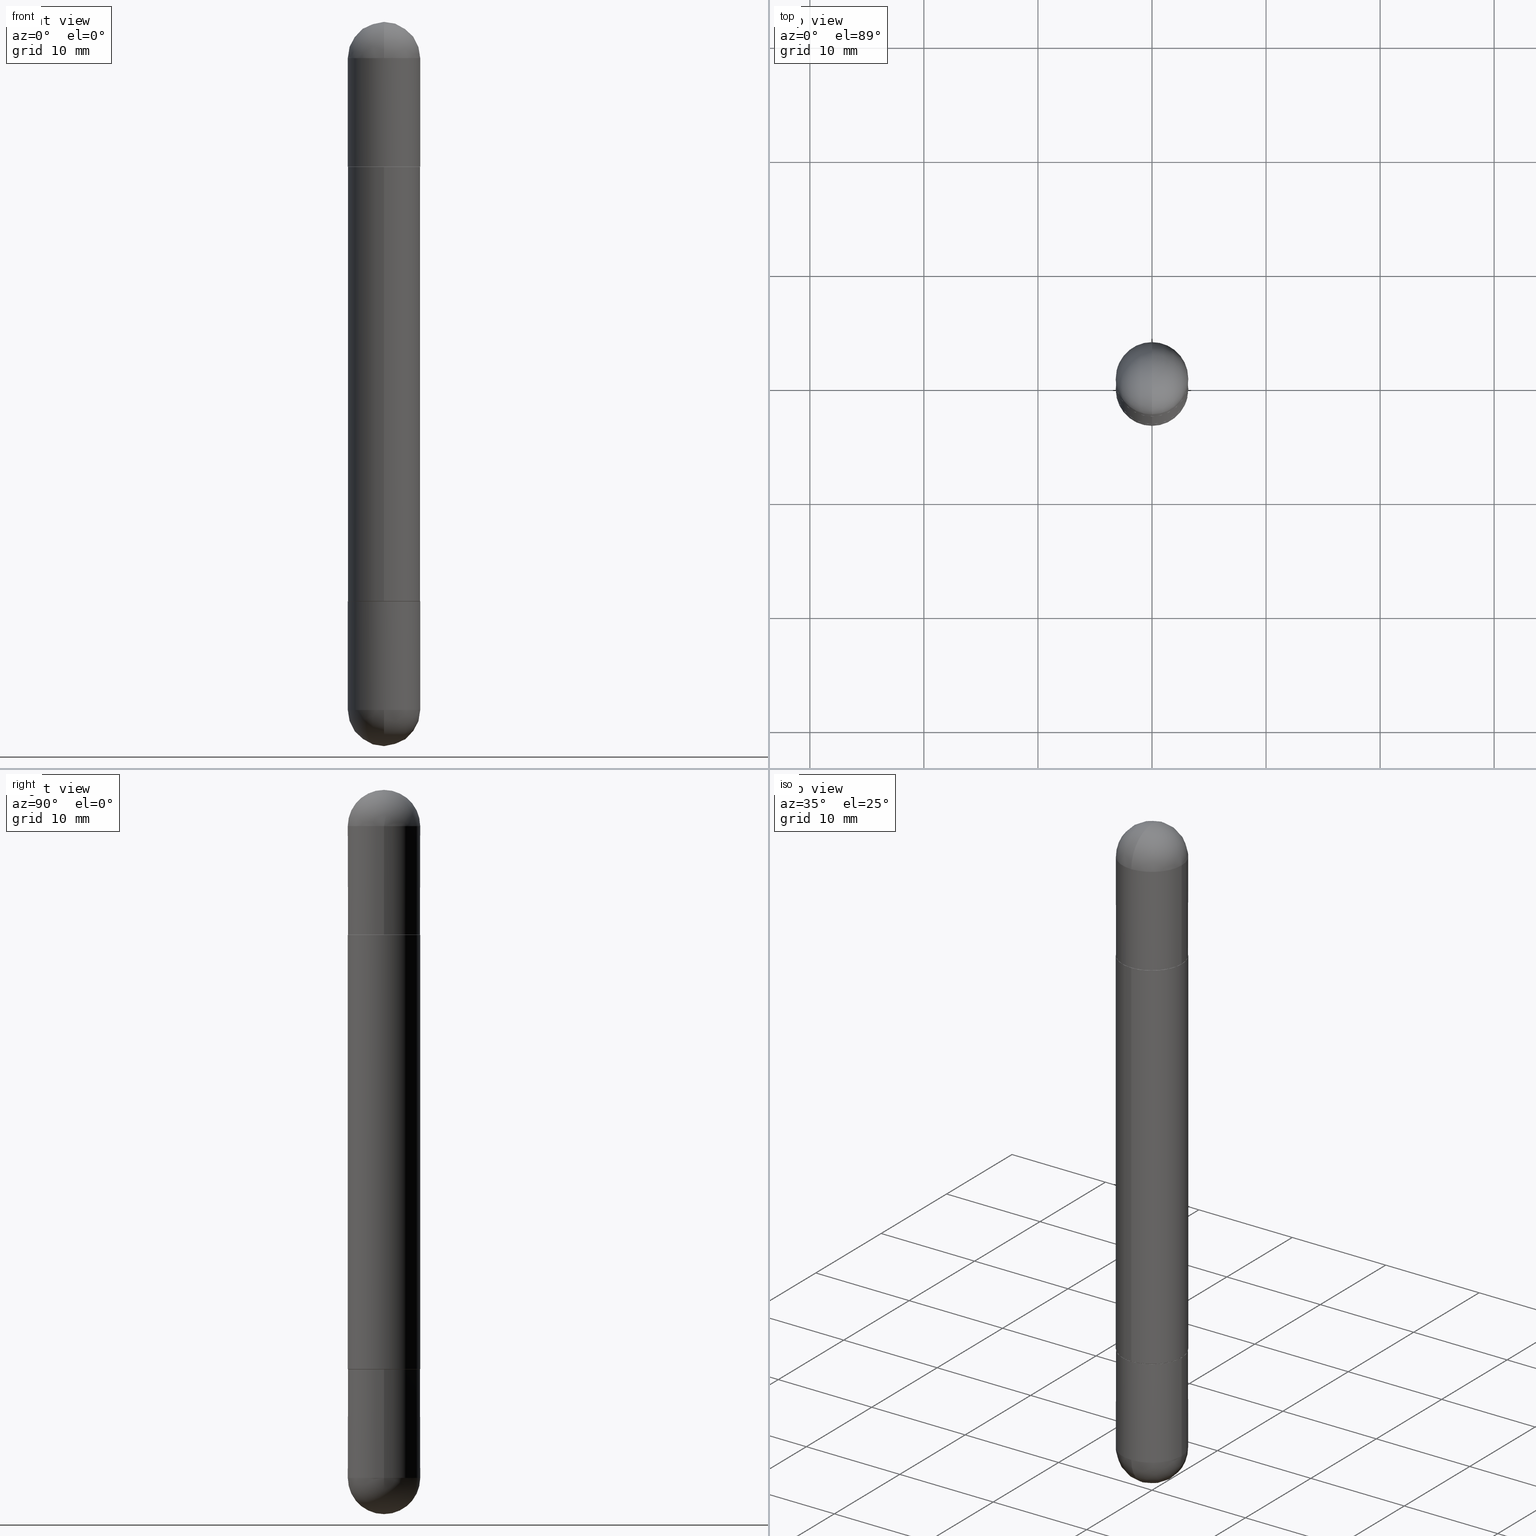
[diagram: canonical four-view strip — front | top / right | iso, engineering-drawing reading convention]
A machine part, canonical four-view strip (front | top / right | iso — engineering-drawing reading convention). The complete STEP part file that produces these views, byte-faithful:
ISO-10303-21;
HEADER;
FILE_DESCRIPTION (( 'STEP AP203' ),
    '1' );
FILE_NAME ('31470.STEP',
    '2024-03-01T12:42:02',
    ( '' ),
    ( '' ),
    'SwSTEP 2.0',
    'SolidWorks 2023',
    '' );
FILE_SCHEMA (( 'CONFIG_CONTROL_DESIGN' ));
ENDSEC;

DATA;
#1 = CYLINDRICAL_SURFACE ( 'NONE', #696, 0.1250000000000001388 ) ;
#2 =( CONVERSION_BASED_UNIT ( 'INCH', #409 ) LENGTH_UNIT ( ) NAMED_UNIT ( #298 ) );
#3 = CARTESIAN_POINT ( 'NONE',  ( 5.807988414689700538E-29, -8.292268179752471696E-15, -0.1250000000000004441 ) ) ;
#4 = DIRECTION ( 'NONE',  ( -2.444981061416011497E-29, 3.492179817113241133E-15, -1.000000000000000000 ) ) ;
#5 = EDGE_LOOP ( 'NONE', ( #20, #592, #673, #334, #473 ) ) ;
#6 = AXIS2_PLACEMENT_3D ( 'NONE', #447, #86, #73 ) ;
#7 = AXIS2_PLACEMENT_3D ( 'NONE', #325, #4, #514 ) ;
#8 = CLOSED_SHELL ( 'NONE', ( #542, #321, #764, #647, #517, #436 ) ) ;
#9 = LINE ( 'NONE', #396, #603 ) ;
#10 = CARTESIAN_POINT ( 'NONE',  ( 5.807988414689700538E-29, -8.292268179752471696E-15, -2.375000000000000000 ) ) ;
#11 = ORIENTED_EDGE ( 'NONE', *, *, #99, .F. ) ;
#12 = EDGE_CURVE ( 'NONE', #398, #81, #238, .T. ) ;
#13 = DIRECTION ( 'NONE',  ( -6.982962677686265922E-15, -1.000000000000000000, -4.370956789862816416E-15 ) ) ;
#14 = DIRECTION ( 'NONE',  ( 2.444981061416011497E-29, -3.492179817113241133E-15, 1.000000000000000000 ) ) ;
#15 = VERTEX_POINT ( 'NONE', #438 ) ;
#16 = CC_DESIGN_PERSON_AND_ORGANIZATION_ASSIGNMENT ( #617, #128, ( #330 ) ) ;
#17 = CARTESIAN_POINT ( 'NONE',  ( 0.1250000000000000000, -8.510485763430165164E-15, -2.375000000000000000 ) ) ;
#18 = ADVANCED_FACE ( 'NONE', ( #243 ), #495, .T. ) ;
#19 = DIRECTION ( 'NONE',  ( -1.000000000000000000, 0.000000000000000000, 0.000000000000000000 ) ) ;
#20 = ORIENTED_EDGE ( 'NONE', *, *, #85, .F. ) ;
#21 = VECTOR ( 'NONE', #397, 39.37007874015748143 ) ;
#22 = AXIS2_PLACEMENT_3D ( 'NONE', #731, #292, #788 ) ;
#23 = CARTESIAN_POINT ( 'NONE',  ( 5.807988414689700538E-29, -8.292268179752471696E-15, -0.1250000000000004441 ) ) ;
#24 = AXIS2_PLACEMENT_3D ( 'NONE', #59, #565, #376 ) ;
#25 = EDGE_CURVE ( 'NONE', #196, #212, #405, .T. ) ;
#26 = CARTESIAN_POINT ( 'NONE',  ( 4.887517141770606261E-29, -6.980867454409367060E-15, -0.5010000000000010001 ) ) ;
#27 = ORIENTED_EDGE ( 'NONE', *, *, #465, .T. ) ;
#28 = LINE ( 'NONE', #281, #191 ) ;
#29 = DIRECTION ( 'NONE',  ( 1.000000000000000000, -6.982962677686265922E-15, -4.883557194083112901E-29 ) ) ;
#30 = ORIENTED_EDGE ( 'NONE', *, *, #313, .F. ) ;
#31 = DIRECTION ( 'NONE',  ( 6.982962677686265922E-15, 1.000000000000000000, -4.370956789862814839E-15 ) ) ;
#32 = DIRECTION ( 'NONE',  ( -6.982962677686265922E-15, -1.000000000000000000, -3.304654831045479808E-15 ) ) ;
#33 = VERTEX_POINT ( 'NONE', #181 ) ;
#34 = FACE_OUTER_BOUND ( 'NONE', #112, .T. ) ;
#35 = CONICAL_SURFACE ( 'NONE', #342, 0.1239999999999999991, 0.7853981633975507526 ) ;
#36 = FACE_OUTER_BOUND ( 'NONE', #404, .T. ) ;
#37 = LOCAL_TIME ( 7, 42, 2.000000000000000000, #574 ) ;
#38 = AXIS2_PLACEMENT_3D ( 'NONE', #123, #55, #245 ) ;
#39 = AXIS2_PLACEMENT_3D ( 'NONE', #87, #608, #729 ) ;
#40 = ORIENTED_EDGE ( 'NONE', *, *, #572, .T. ) ;
#41 = EDGE_CURVE ( 'NONE', #190, #569, #513, .T. ) ;
#42 = DIRECTION ( 'NONE',  ( -1.000000000000000000, 6.982962677686265922E-15, -4.883557194083112901E-29 ) ) ;
#43 = FACE_OUTER_BOUND ( 'NONE', #796, .T. ) ;
#44 = EDGE_LOOP ( 'NONE', ( #620, #373, #735, #159 ) ) ;
#45 = FACE_OUTER_BOUND ( 'NONE', #740, .T. ) ;
#46 = EDGE_CURVE ( 'NONE', #81, #398, #578, .T. ) ;
#47 = ORIENTED_EDGE ( 'NONE', *, *, #500, .F. ) ;
#48 = PRODUCT_DEFINITION_SHAPE ( 'NONE', 'NONE',  #770 ) ;
#49 = DIRECTION ( 'NONE',  ( -1.000000000000000000, 6.982962677686265922E-15, 4.883557194083112340E-29 ) ) ;
#50 = AXIS2_PLACEMENT_3D ( 'NONE', #305, #558, #237 ) ;
#51 = ADVANCED_FACE ( 'NONE', ( #501 ), #693, .T. ) ;
#52 = SECURITY_CLASSIFICATION ( '', '', #319 ) ;
#53 = ORIENTED_EDGE ( 'NONE', *, *, #124, .T. ) ;
#54 = DIRECTION ( 'NONE',  ( 2.445468806185136597E-29, -3.491481338843145583E-15, 1.000000000000000000 ) ) ;
#55 = DIRECTION ( 'NONE',  ( -1.000000000000000000, 6.982962677686265922E-15, -4.883557194083112901E-29 ) ) ;
#56 = DIRECTION ( 'NONE',  ( -6.982962677686265133E-15, -1.000000000000000000, 0.000000000000000000 ) ) ;
#57 = DIRECTION ( 'NONE',  ( 2.444981061416011497E-29, -3.492179817113241133E-15, 1.000000000000000000 ) ) ;
#58 = ADVANCED_FACE ( 'NONE', ( #317 ), #629, .T. ) ;
#59 = CARTESIAN_POINT ( 'NONE',  ( 0.000000000000000000, 0.000000000000000000, -2.500000000000000444 ) ) ;
#60 = DIRECTION ( 'NONE',  ( 6.982962677686265922E-15, 1.000000000000000000, 3.551402391763536859E-15 ) ) ;
#61 = AXIS2_PLACEMENT_3D ( 'NONE', #146, #778, #400 ) ;
#62 = AXIS2_PLACEMENT_3D ( 'NONE', #576, #145, #189 ) ;
#63 = PERSON_AND_ORGANIZATION_ROLE ( 'design_supplier' ) ;
#64 = AXIS2_PLACEMENT_3D ( 'NONE', #622, #57, #561 ) ;
#65 = CIRCLE ( 'NONE', #276, 0.1250000000000000000 ) ;
#66 = CC_DESIGN_PERSON_AND_ORGANIZATION_ASSIGNMENT ( #175, #610, ( #750 ) ) ;
#67 = DIRECTION ( 'NONE',  ( 2.445468806185136597E-29, -3.491481338843145583E-15, 1.000000000000000000 ) ) ;
#68 = DIRECTION ( 'NONE',  ( -6.982962677686265922E-15, -1.000000000000000000, -3.304654831045479808E-15 ) ) ;
#69 = COORDINATED_UNIVERSAL_TIME_OFFSET ( 5, 0, .BEHIND. ) ;
#70 = CARTESIAN_POINT ( 'NONE',  ( 0.000000000000000000, 0.000000000000000000, -2.500000000000000444 ) ) ;
#71 = CARTESIAN_POINT ( 'NONE',  ( 0.000000000000000000, 0.000000000000000000, 0.000000000000000000 ) ) ;
#72 = APPROVAL_ROLE ( '' ) ;
#73 = DIRECTION ( 'NONE',  ( 1.000000000000000000, -6.982962677686270655E-15, 0.000000000000000000 ) ) ;
#74 = DIRECTION ( 'NONE',  ( 6.982962677686265922E-15, 1.000000000000000000, 3.551402391763536859E-15 ) ) ;
#75 = ADVANCED_FACE ( 'NONE', ( #200 ), #782, .T. ) ;
#76 = ORIENTED_EDGE ( 'NONE', *, *, #492, .T. ) ;
#77 = VECTOR ( 'NONE', #607, 39.37007874015748143 ) ;
#78 = AXIS2_PLACEMENT_3D ( 'NONE', #161, #786, #103 ) ;
#79 = DIRECTION ( 'NONE',  ( -2.444981061416010936E-29, 3.492179817113241133E-15, -1.000000000000000000 ) ) ;
#80 = DIRECTION ( 'NONE',  ( 1.000000000000000000, -6.860497997771530774E-15, -4.840798879624142912E-29 ) ) ;
#81 = VERTEX_POINT ( 'NONE', #275 ) ;
#82 = FACE_OUTER_BOUND ( 'NONE', #584, .T. ) ;
#83 = CARTESIAN_POINT ( 'NONE',  ( -8.728703347107364016E-16, -0.1250000000000072720, -0.5010000000000014442 ) ) ;
#84 = ORIENTED_EDGE ( 'NONE', *, *, #12, .F. ) ;
#85 = EDGE_CURVE ( 'NONE', #365, #515, #117, .T. ) ;
#86 = DIRECTION ( 'NONE',  ( 2.445468806185136597E-29, -3.491481338843145583E-15, 1.000000000000000000 ) ) ;
#87 = CARTESIAN_POINT ( 'NONE',  ( 4.887517141770606261E-29, -6.980867454409367060E-15, -0.5010000000000010001 ) ) ;
#88 = VERTEX_POINT ( 'NONE', #522 ) ;
#89 = APPROVAL_PERSON_ORGANIZATION ( #738, #674, #363 ) ;
#90 = DIRECTION ( 'NONE',  ( -2.445468806185136877E-29, 3.491481338843145188E-15, -1.000000000000000000 ) ) ;
#91 = PLANE ( 'NONE',  #104 ) ;
#92 = ORIENTED_EDGE ( 'NONE', *, *, #99, .T. ) ;
#93 = DIRECTION ( 'NONE',  ( -6.982962677686265922E-15, -1.000000000000000000, 4.406206441393973340E-15 ) ) ;
#94 = DIRECTION ( 'NONE',  ( -6.982962677686265922E-15, -1.000000000000000000, -3.492179817113241133E-15 ) ) ;
#95 = ORIENTED_EDGE ( 'NONE', *, *, #210, .F. ) ;
#96 = DIRECTION ( 'NONE',  ( -6.982962677686265922E-15, -1.000000000000000000, -3.304654831045479808E-15 ) ) ;
#97 = CARTESIAN_POINT ( 'NONE',  ( 0.1250000000000000000, -8.728703347107833388E-16, 6.095220969744919741E-30 ) ) ;
#98 = EDGE_LOOP ( 'NONE', ( #793, #322, #299, #433, #587 ) ) ;
#99 = EDGE_CURVE ( 'NONE', #152, #811, #332, .T. ) ;
#100 = VECTOR ( 'NONE', #662, 39.37007874015748143 ) ;
#101 = DIRECTION ( 'NONE',  ( 2.438088387897960049E-29, -3.491481338843145188E-15, -1.000000000000000000 ) ) ;
#102 = CIRCLE ( 'NONE', #50, 0.1250000000000000000 ) ;
#103 = DIRECTION ( 'NONE',  ( 1.000000000000000000, -6.982962677686266711E-15, 0.000000000000000000 ) ) ;
#104 = AXIS2_PLACEMENT_3D ( 'NONE', #285, #536, #94 ) ;
#105 = VERTEX_POINT ( 'NONE', #771 ) ;
#106 = CALENDAR_DATE ( 2024, 1, 3 ) ;
#107 = DIRECTION ( 'NONE',  ( -2.444981061416011497E-29, 3.492179817113241133E-15, 1.000000000000000000 ) ) ;
#108 = ORIENTED_EDGE ( 'NONE', *, *, #479, .F. ) ;
#109 = PERSON_AND_ORGANIZATION ( #468, #279 ) ;
#110 = EDGE_CURVE ( 'NONE', #152, #477, #267, .T. ) ;
#111 = DIRECTION ( 'NONE',  ( 1.000000000000000000, -6.982962677686266711E-15, 4.876176775795935793E-29 ) ) ;
#112 = EDGE_LOOP ( 'NONE', ( #730, #219, #599, #343 ) ) ;
#113 = APPROVAL_ROLE ( '' ) ;
#114 = LINE ( 'NONE', #173, #119 ) ;
#115 = AXIS2_PLACEMENT_3D ( 'NONE', #370, #614, #315 ) ;
#116 = LOCAL_TIME ( 7, 42, 2.000000000000000000, #678 ) ;
#117 = CIRCLE ( 'NONE', #222, 0.1250000000000000000 ) ;
#118 = CARTESIAN_POINT ( 'NONE',  ( 4.889962122832022433E-29, -6.984359634226481478E-15, -0.5000000000000009992 ) ) ;
#119 = VECTOR ( 'NONE', #367, 39.37007874015748143 ) ;
#120 = CARTESIAN_POINT ( 'NONE',  ( 8.728703347108321496E-16, 0.1249999999999930195, -0.5000000000000001110 ) ) ;
#121 = EDGE_LOOP ( 'NONE', ( #546, #303, #680, #520, #422 ) ) ;
#122 = CARTESIAN_POINT ( 'NONE',  ( 8.541320007226054361E-16, 0.1239999999999930186, -0.5000000000000005551 ) ) ;
#123 = CARTESIAN_POINT ( 'NONE',  ( 5.476868636775814291E-29, -8.766450547892521992E-15, -2.375000000000000000 ) ) ;
#124 = EDGE_CURVE ( 'NONE', #726, #272, #733, .T. ) ;
#125 = CARTESIAN_POINT ( 'NONE',  ( 4.890937612370273194E-29, -6.982962677686291165E-15, -0.5000000000000006661 ) ) ;
#126 = DIRECTION ( 'NONE',  ( -2.445468806185136597E-29, 3.491481338843145583E-15, 1.000000000000000000 ) ) ;
#127 = CIRCLE ( 'NONE', #262, 0.1250000000000000000 ) ;
#128 = PERSON_AND_ORGANIZATION_ROLE ( 'creator' ) ;
#129 = CIRCLE ( 'NONE', #169, 0.1250000000000000000 ) ;
#130 = DIRECTION ( 'NONE',  ( -2.444981061416011497E-29, 3.492179817113241133E-15, -1.000000000000000000 ) ) ;
#131 = DIRECTION ( 'NONE',  ( -2.445468806185136597E-29, 3.491481338843145583E-15, 1.000000000000000000 ) ) ;
#132 = DATE_AND_TIME ( #758, #640 ) ;
#133 = DIRECTION ( 'NONE',  ( 1.000000000000000000, -6.982962677686270655E-15, 0.000000000000000000 ) ) ;
#134 = EDGE_CURVE ( 'NONE', #88, #534, #203, .T. ) ;
#135 = CARTESIAN_POINT ( 'NONE',  ( -0.1250000000000000000, 8.881784197001252323E-16, -6.148668862818632227E-30 ) ) ;
#136 = ORIENTED_EDGE ( 'NONE', *, *, #301, .T. ) ;
#137 = DIRECTION ( 'NONE',  ( -2.444981061416011497E-29, 3.492179817113241133E-15, -1.000000000000000000 ) ) ;
#138 = DIRECTION ( 'NONE',  ( -6.982962677686265922E-15, -1.000000000000000000, -3.278217592397108762E-15 ) ) ;
#139 = ORIENTED_EDGE ( 'NONE', *, *, #347, .F. ) ;
#140 = VECTOR ( 'NONE', #518, 39.37007874015748143 ) ;
#141 = CC_DESIGN_SECURITY_CLASSIFICATION ( #52, ( #330 ) ) ;
#142 = DIRECTION ( 'NONE',  ( -6.982962677686265922E-15, -1.000000000000000000, -3.304654831045479808E-15 ) ) ;
#143 = LINE ( 'NONE', #583, #21 ) ;
#144 = ORIENTED_EDGE ( 'NONE', *, *, #85, .T. ) ;
#145 = DIRECTION ( 'NONE',  ( 1.000000000000000000, -6.982962677686265922E-15, 4.883557194083112340E-29 ) ) ;
#146 = CARTESIAN_POINT ( 'NONE',  ( 4.890937612370273194E-29, -6.982962677686291165E-15, -0.5000000000000006661 ) ) ;
#147 = ORIENTED_EDGE ( 'NONE', *, *, #221, .T. ) ;
#148 = EDGE_CURVE ( 'NONE', #105, #485, #463, .T. ) ;
#149 = CARTESIAN_POINT ( 'NONE',  ( 8.810729923425729363E-16, 0.1239999999999930186, -2.000000000000000444 ) ) ;
#150 = FACE_OUTER_BOUND ( 'NONE', #449, .T. ) ;
#151 = APPLICATION_CONTEXT ( 'configuration controlled 3d designs of mechanical parts and assemblies' ) ;
#152 = VERTEX_POINT ( 'NONE', #385 ) ;
#153 = CIRCLE ( 'NONE', #236, 0.1250000000000000000 ) ;
#154 = FACE_OUTER_BOUND ( 'NONE', #668, .T. ) ;
#155 = CARTESIAN_POINT ( 'NONE',  ( 4.889962122832022433E-29, -6.984359634226481478E-15, -1.999999999999999778 ) ) ;
#156 = VERTEX_POINT ( 'NONE', #448 ) ;
#157 = ADVANCED_FACE ( 'NONE', ( #586 ), #209, .T. ) ;
#158 = CARTESIAN_POINT ( 'NONE',  ( 4.887517141770606261E-29, -6.980867454409367060E-15, -1.998999999999999666 ) ) ;
#159 = ORIENTED_EDGE ( 'NONE', *, *, #41, .F. ) ;
#160 = DIRECTION ( 'NONE',  ( -2.444981061416011497E-29, 3.492179817113241133E-15, -1.000000000000000000 ) ) ;
#161 = CARTESIAN_POINT ( 'NONE',  ( 0.000000000000000000, 0.000000000000000000, -2.500000000000000444 ) ) ;
#162 = CC_DESIGN_DATE_AND_TIME_ASSIGNMENT ( #386, #634, ( #52 ) ) ;
#163 = EDGE_LOOP ( 'NONE', ( #772, #619, #136, #497 ) ) ;
#164 = EDGE_CURVE ( 'NONE', #212, #196, #420, .T. ) ;
#165 = CONICAL_SURFACE ( 'NONE', #499, 0.1239999999999999991, 0.7853981633975507526 ) ;
#166 = CARTESIAN_POINT ( 'NONE',  ( -8.728703347107444874E-16, -0.1250000000000044964, -1.250000000000000222 ) ) ;
#167 = AXIS2_PLACEMENT_3D ( 'NONE', #544, #781, #419 ) ;
#168 = DIRECTION ( 'NONE',  ( 6.982962677686265922E-15, 1.000000000000000000, 3.551402391763536859E-15 ) ) ;
#169 = AXIS2_PLACEMENT_3D ( 'NONE', #654, #355, #421 ) ;
#170 = VERTEX_POINT ( 'NONE', #341 ) ;
#171 = ADVANCED_FACE ( 'NONE', ( #388 ), #633, .T. ) ;
#172 = CALENDAR_DATE ( 2024, 1, 3 ) ;
#173 = CARTESIAN_POINT ( 'NONE',  ( -0.1250000000000000000, 8.575622497214414453E-16, -2.500000000000000444 ) ) ;
#174 = ORIENTED_EDGE ( 'NONE', *, *, #753, .F. ) ;
#175 = PERSON_AND_ORGANIZATION ( #468, #279 ) ;
#176 = DIRECTION ( 'NONE',  ( 1.000000000000000000, -6.982962677686270655E-15, 0.000000000000000000 ) ) ;
#177 = ORIENTED_EDGE ( 'NONE', *, *, #465, .F. ) ;
#178 = APPLICATION_CONTEXT ( 'configuration controlled 3d designs of mechanical parts and assemblies' ) ;
#179 = CYLINDRICAL_SURFACE ( 'NONE', #579, 0.1250000000000000000 ) ;
#180 = AXIS2_PLACEMENT_3D ( 'NONE', #547, #720, #227 ) ;
#181 = CARTESIAN_POINT ( 'NONE',  ( -0.1250000000000000000, -6.780053178997939591E-15, -0.5000000000000006661 ) ) ;
#182 = DIRECTION ( 'NONE',  ( 1.000000000000000000, -6.982962677686270655E-15, 0.000000000000000000 ) ) ;
#183 = EDGE_CURVE ( 'NONE', #212, #272, #143, .T. ) ;
#184 = CARTESIAN_POINT ( 'NONE',  ( 5.476868636775814291E-29, -8.766450547892521992E-15, -0.1250000000000004441 ) ) ;
#185 = FACE_OUTER_BOUND ( 'NONE', #742, .T. ) ;
#186 = DIRECTION ( 'NONE',  ( 2.444981061416011497E-29, -3.492179817113241133E-15, 1.000000000000000000 ) ) ;
#187 = CALENDAR_DATE ( 2024, 1, 3 ) ;
#188 = EDGE_CURVE ( 'NONE', #569, #660, #239, .T. ) ;
#189 = DIRECTION ( 'NONE',  ( 6.982962677686265133E-15, 1.000000000000000000, 0.000000000000000000 ) ) ;
#190 = VERTEX_POINT ( 'NONE', #391 ) ;
#191 = VECTOR ( 'NONE', #90, 39.37007874015748143 ) ;
#192 = PERSON_AND_ORGANIZATION_ROLE ( 'creator' ) ;
#193 = EDGE_CURVE ( 'NONE', #15, #515, #489, .T. ) ;
#194 = CARTESIAN_POINT ( 'NONE',  ( 8.846257060213744265E-16, 0.1239999999999930186, -2.000000000000000444 ) ) ;
#195 = DIRECTION ( 'NONE',  ( 1.000000000000000000, -6.982962677686266711E-15, 4.876176775795935793E-29 ) ) ;
#196 = VERTEX_POINT ( 'NONE', #83 ) ;
#197 = PERSON_AND_ORGANIZATION ( #468, #279 ) ;
#198 = CC_DESIGN_PERSON_AND_ORGANIZATION_ASSIGNMENT ( #369, #192, ( #770 ) ) ;
#199 = DIRECTION ( 'NONE',  ( -1.000000000000000000, 0.000000000000000000, 0.000000000000000000 ) ) ;
#200 = FACE_OUTER_BOUND ( 'NONE', #428, .T. ) ;
#201 = VERTEX_POINT ( 'NONE', #337 ) ;
#202 = CARTESIAN_POINT ( 'NONE',  ( 0.1250000000000000000, -7.855833012397075293E-15, -0.5000000000000006661 ) ) ;
#203 = LINE ( 'NONE', #135, #224 ) ;
#204 = ORIENTED_EDGE ( 'NONE', *, *, #46, .T. ) ;
#205 = CIRCLE ( 'NONE', #638, 0.1250000000000000000 ) ;
#206 =( GEOMETRIC_REPRESENTATION_CONTEXT ( 3 ) GLOBAL_UNCERTAINTY_ASSIGNED_CONTEXT ( ( #543 ) ) GLOBAL_UNIT_ASSIGNED_CONTEXT ( ( #2, #259, #555 ) ) REPRESENTATION_CONTEXT ( 'NONE', 'WORKASPACE' ) );
#207 = CLOSED_SHELL ( 'NONE', ( #632, #51, #287, #711, #362 ) ) ;
#208 = FACE_OUTER_BOUND ( 'NONE', #817, .T. ) ;
#209 = SPHERICAL_SURFACE ( 'NONE', #379, 0.1250000000000001943 ) ;
#210 = EDGE_CURVE ( 'NONE', #249, #485, #359, .T. ) ;
#211 = MANIFOLD_SOLID_BREP ( 'Body-Move/Copy2[1]', #655 ) ;
#212 = VERTEX_POINT ( 'NONE', #649 ) ;
#213 = DIRECTION ( 'NONE',  ( -2.444981061416011497E-29, 3.492179817113241133E-15, 1.000000000000000000 ) ) ;
#214 = FACE_OUTER_BOUND ( 'NONE', #691, .T. ) ;
#215 = EDGE_LOOP ( 'NONE', ( #523, #401, #752, #306 ) ) ;
#216 = MANIFOLD_SOLID_BREP ( 'Mirror4[4]', #207 ) ;
#217 = CARTESIAN_POINT ( 'NONE',  ( 5.476868636775814291E-29, -8.766450547892521992E-15, -2.375000000000000000 ) ) ;
#218 = DIRECTION ( 'NONE',  ( -2.444981061416011497E-29, 3.492179817113241133E-15, 1.000000000000000000 ) ) ;
#219 = ORIENTED_EDGE ( 'NONE', *, *, #426, .T. ) ;
#220 = CONICAL_SURFACE ( 'NONE', #392, 0.1239999999999999991, 0.7853981633975507526 ) ;
#221 = EDGE_CURVE ( 'NONE', #811, #152, #792, .T. ) ;
#222 = AXIS2_PLACEMENT_3D ( 'NONE', #761, #766, #699 ) ;
#223 = FACE_OUTER_BOUND ( 'NONE', #253, .T. ) ;
#224 = VECTOR ( 'NONE', #452, 39.37007874015748143 ) ;
#225 = DIRECTION ( 'NONE',  ( -2.445468806185136597E-29, 3.491481338843145583E-15, -1.000000000000000000 ) ) ;
#226 = ORIENTED_EDGE ( 'NONE', *, *, #611, .T. ) ;
#227 = DIRECTION ( 'NONE',  ( 6.860497997771529196E-15, 1.000000000000000000, 0.000000000000000000 ) ) ;
#228 = CC_DESIGN_DATE_AND_TIME_ASSIGNMENT ( #675, #550, ( #770 ) ) ;
#229 = DIRECTION ( 'NONE',  ( -2.444981061416011497E-29, 3.492179817113241133E-15, 1.000000000000000000 ) ) ;
#230 = ORIENTED_EDGE ( 'NONE', *, *, #492, .F. ) ;
#231 = CARTESIAN_POINT ( 'NONE',  ( 8.575622497214909463E-16, 0.1249999999999957673, -1.250000000000000222 ) ) ;
#232 = EDGE_CURVE ( 'NONE', #105, #411, #461, .T. ) ;
#233 = ORIENTED_EDGE ( 'NONE', *, *, #600, .T. ) ;
#234 = AXIS2_PLACEMENT_3D ( 'NONE', #384, #765, #199 ) ;
#235 = APPROVAL_STATUS ( 'not_yet_approved' ) ;
#236 = AXIS2_PLACEMENT_3D ( 'NONE', #755, #327, #133 ) ;
#237 = DIRECTION ( 'NONE',  ( 1.000000000000000000, -6.982962677686270655E-15, 0.000000000000000000 ) ) ;
#238 = CIRCLE ( 'NONE', #345, 0.1239999999999999991 ) ;
#239 = CIRCLE ( 'NONE', #737, 0.1250000000000000000 ) ;
#240 = ORIENTED_EDGE ( 'NONE', *, *, #193, .F. ) ;
#241 = APPLICATION_PROTOCOL_DEFINITION ( 'international standard', 'config_control_design', 1994, #178 ) ;
#242 = CARTESIAN_POINT ( 'NONE',  ( 5.807988414689700538E-29, -8.292268179752471696E-15, -2.375000000000000000 ) ) ;
#243 = FACE_OUTER_BOUND ( 'NONE', #44, .T. ) ;
#244 = DIRECTION ( 'NONE',  ( -2.444981061416011497E-29, 3.492179817113241133E-15, 1.000000000000000000 ) ) ;
#245 = DIRECTION ( 'NONE',  ( 6.982962677686265922E-15, 1.000000000000000000, -4.370956789862814839E-15 ) ) ;
#246 = ADVANCED_FACE ( 'NONE', ( #403 ), #722, .T. ) ;
#247 = DIRECTION ( 'NONE',  ( -1.000000000000000000, 6.982962677686265922E-15, 4.876176775795935793E-29 ) ) ;
#248 = CIRCLE ( 'NONE', #814, 0.1250000000000000000 ) ;
#249 = VERTEX_POINT ( 'NONE', #348 ) ;
#250 = AXIS2_PLACEMENT_3D ( 'NONE', #636, #580, #74 ) ;
#251 = CARTESIAN_POINT ( 'NONE',  ( 0.000000000000000000, 0.000000000000000000, 0.000000000000000000 ) ) ;
#252 = ADVANCED_FACE ( 'NONE', ( #43 ), #548, .T. ) ;
#253 = EDGE_LOOP ( 'NONE', ( #53, #226 ) ) ;
#254 = DIRECTION ( 'NONE',  ( 1.000000000000000000, 0.000000000000000000, 0.000000000000000000 ) ) ;
#255 = DIRECTION ( 'NONE',  ( -2.444981061416011497E-29, 3.492179817113241133E-15, -1.000000000000000000 ) ) ;
#256 = ORIENTED_EDGE ( 'NONE', *, *, #148, .T. ) ;
#257 = EDGE_CURVE ( 'NONE', #201, #566, #806, .T. ) ;
#258 = ORIENTED_EDGE ( 'NONE', *, *, #183, .F. ) ;
#259 =( NAMED_UNIT ( * ) PLANE_ANGLE_UNIT ( ) SI_UNIT ( $, .RADIAN. ) );
#260 = DIRECTION ( 'NONE',  ( 1.000000000000000000, -6.982962677686266711E-15, 0.000000000000000000 ) ) ;
#261 = DIRECTION ( 'NONE',  ( -6.982962677686265922E-15, -1.000000000000000000, -3.278217592397108762E-15 ) ) ;
#262 = AXIS2_PLACEMENT_3D ( 'NONE', #23, #665, #657 ) ;
#263 = ORIENTED_EDGE ( 'NONE', *, *, #451, .T. ) ;
#264 = APPROVAL_DATE_TIME ( #132, #335 ) ;
#265 = AXIS2_PLACEMENT_3D ( 'NONE', #71, #282, #195 ) ;
#266 = CYLINDRICAL_SURFACE ( 'NONE', #278, 0.1250000000000001388 ) ;
#267 = LINE ( 'NONE', #328, #562 ) ;
#268 = VERTEX_POINT ( 'NONE', #467 ) ;
#269 = EDGE_CURVE ( 'NONE', #477, #268, #431, .T. ) ;
#270 = CARTESIAN_POINT ( 'NONE',  ( 4.889962122832022433E-29, -6.984359634226481478E-15, -0.5000000000000009992 ) ) ;
#271 = DIRECTION ( 'NONE',  ( 2.444981061416011497E-29, -3.492179817113241133E-15, 1.000000000000000000 ) ) ;
#272 = VERTEX_POINT ( 'NONE', #231 ) ;
#273 = CARTESIAN_POINT ( 'NONE',  ( -8.728703347107842263E-16, -0.1250000000000001388, -2.500000000000001332 ) ) ;
#274 = EDGE_CURVE ( 'NONE', #170, #529, #732, .T. ) ;
#275 = CARTESIAN_POINT ( 'NONE',  ( -8.658873720330480207E-16, -0.1240000000000069796, -0.5000000000000013323 ) ) ;
#276 = AXIS2_PLACEMENT_3D ( 'NONE', #242, #490, #801 ) ;
#277 = VERTEX_POINT ( 'NONE', #294 ) ;
#278 = AXIS2_PLACEMENT_3D ( 'NONE', #648, #130, #387 ) ;
#279 = ORGANIZATION ( 'UNSPECIFIED', 'UNSPECIFIED', '' ) ;
#280 = AXIS2_PLACEMENT_3D ( 'NONE', #816, #67, #621 ) ;
#281 = CARTESIAN_POINT ( 'NONE',  ( -0.1250000000000000000, 8.575622497214414453E-16, -2.500000000000000444 ) ) ;
#282 = DIRECTION ( 'NONE',  ( -2.445468806185136597E-29, 3.491481338843145583E-15, 1.000000000000000000 ) ) ;
#283 = ORIENTED_EDGE ( 'NONE', *, *, #686, .F. ) ;
#284 =( LENGTH_UNIT ( ) NAMED_UNIT ( * ) SI_UNIT ( $, .METRE. ) );
#285 = CARTESIAN_POINT ( 'NONE',  ( 4.889962122832022994E-29, -6.984359634226482266E-15, -0.5000000000000006661 ) ) ;
#286 = ORIENTED_EDGE ( 'NONE', *, *, #221, .F. ) ;
#287 = ADVANCED_FACE ( 'NONE', ( #150 ), #666, .T. ) ;
#288 = FACE_OUTER_BOUND ( 'NONE', #453, .T. ) ;
#289 = DIRECTION ( 'NONE',  ( 1.000000000000000000, -6.982962677686270655E-15, 0.000000000000000000 ) ) ;
#290 = ORIENTED_EDGE ( 'NONE', *, *, #658, .T. ) ;
#291 = AXIS2_PLACEMENT_3D ( 'NONE', #442, #704, #142 ) ;
#292 = DIRECTION ( 'NONE',  ( 2.445468806185136597E-29, -3.491481338843145583E-15, 1.000000000000000000 ) ) ;
#293 = AXIS2_PLACEMENT_3D ( 'NONE', #360, #225, #297 ) ;
#294 = CARTESIAN_POINT ( 'NONE',  ( -8.658873720330480207E-16, -0.1240000000000069796, -1.999999999999999112 ) ) ;
#295 = ORIENTED_EDGE ( 'NONE', *, *, #479, .T. ) ;
#296 = CARTESIAN_POINT ( 'NONE',  ( 4.889962122832022433E-29, -6.984359634226481478E-15, -1.999999999999999778 ) ) ;
#297 = DIRECTION ( 'NONE',  ( 1.000000000000000000, -6.982962677686266711E-15, 0.000000000000000000 ) ) ;
#298 = DIMENSIONAL_EXPONENTS ( 1.000000000000000000, 0.000000000000000000, 0.000000000000000000, 0.000000000000000000, 0.000000000000000000, 0.000000000000000000, 0.000000000000000000 ) ;
#299 = ORIENTED_EDGE ( 'NONE', *, *, #743, .T. ) ;
#300 = APPLICATION_PROTOCOL_DEFINITION ( 'international standard', 'config_control_design', 1994, #151 ) ;
#301 = EDGE_CURVE ( 'NONE', #515, #105, #129, .T. ) ;
#302 = DIRECTION ( 'NONE',  ( -2.444981061416011497E-29, 3.492179817113241133E-15, 1.000000000000000000 ) ) ;
#303 = ORIENTED_EDGE ( 'NONE', *, *, #459, .T. ) ;
#304 = AXIS2_PLACEMENT_3D ( 'NONE', #594, #797, #478 ) ;
#305 = CARTESIAN_POINT ( 'NONE',  ( 5.807988414689700538E-29, -8.292268179752471696E-15, -2.375000000000000000 ) ) ;
#306 = ORIENTED_EDGE ( 'NONE', *, *, #695, .F. ) ;
#307 = ADVANCED_FACE ( 'NONE', ( #672 ), #314, .T. ) ;
#308 = DIRECTION ( 'NONE',  ( -2.445468806185136597E-29, 3.491481338843145583E-15, 1.000000000000000000 ) ) ;
#309 = ORIENTED_EDGE ( 'NONE', *, *, #611, .F. ) ;
#310 = ADVANCED_FACE ( 'NONE', ( #45 ), #91, .F. ) ;
#311 = CARTESIAN_POINT ( 'NONE',  ( 8.728703347108403340E-16, 0.1249999999999915623, -0.1250000000000000000 ) ) ;
#312 = ORIENTED_EDGE ( 'NONE', *, *, #779, .T. ) ;
#313 = EDGE_CURVE ( 'NONE', #268, #477, #773, .T. ) ;
#314 = CONICAL_SURFACE ( 'NONE', #747, 0.1239999999999999991, 0.7853981633975507526 ) ;
#315 = DIRECTION ( 'NONE',  ( 1.000000000000000000, -6.982962677686270655E-15, 0.000000000000000000 ) ) ;
#316 = AXIS2_PLACEMENT_3D ( 'NONE', #70, #775, #260 ) ;
#317 = FACE_OUTER_BOUND ( 'NONE', #121, .T. ) ;
#318 = CIRCLE ( 'NONE', #280, 0.1250000000000000000 ) ;
#319 = SECURITY_CLASSIFICATION_LEVEL ( 'unclassified' ) ;
#320 = CARTESIAN_POINT ( 'NONE',  ( 0.1250000000000000000, -7.855833012397075293E-15, -2.000000000000000000 ) ) ;
#321 = ADVANCED_FACE ( 'NONE', ( #471 ), #395, .T. ) ;
#322 = ORIENTED_EDGE ( 'NONE', *, *, #446, .T. ) ;
#323 = SHAPE_DEFINITION_REPRESENTATION ( #48, #454 ) ;
#324 = DIRECTION ( 'NONE',  ( 1.000000000000000000, -6.982962677686270655E-15, 0.000000000000000000 ) ) ;
#325 = CARTESIAN_POINT ( 'NONE',  ( 0.000000000000000000, 0.000000000000000000, -2.500000000000000444 ) ) ;
#326 = ORIENTED_EDGE ( 'NONE', *, *, #393, .F. ) ;
#327 = DIRECTION ( 'NONE',  ( -2.445468806185136597E-29, 3.491481338843145583E-15, 1.000000000000000000 ) ) ;
#328 = CARTESIAN_POINT ( 'NONE',  ( 8.575622497214423328E-16, 0.1250000000000001388, -2.500000000000000000 ) ) ;
#329 = AXIS2_PLACEMENT_3D ( 'NONE', #618, #807, #182 ) ;
#330 = PRODUCT_DEFINITION_FORMATION_WITH_SPECIFIED_SOURCE ( 'ANY', '', #750, .NOT_KNOWN. ) ;
#331 = ORIENTED_EDGE ( 'NONE', *, *, #500, .T. ) ;
#332 = CIRCLE ( 'NONE', #593, 0.1250000000000002776 ) ;
#333 = PLANE ( 'NONE',  #746 ) ;
#334 = ORIENTED_EDGE ( 'NONE', *, *, #148, .F. ) ;
#335 = APPROVAL ( #508, 'UNSPECIFIED' ) ;
#336 = CARTESIAN_POINT ( 'NONE',  ( -8.658873720330480207E-16, -0.1240000000000069796, -0.5000000000000013323 ) ) ;
#337 = CARTESIAN_POINT ( 'NONE',  ( -8.658873720330480207E-16, -0.1240000000000069796, -0.5000000000000013323 ) ) ;
#338 = ORIENTED_EDGE ( 'NONE', *, *, #451, .F. ) ;
#339 = DIRECTION ( 'NONE',  ( -2.444981061416010936E-29, 3.492179817113241133E-15, 1.000000000000000000 ) ) ;
#340 = ADVANCED_FACE ( 'NONE', ( #214 ), #165, .T. ) ;
#341 = CARTESIAN_POINT ( 'NONE',  ( 0.1250000000000000000, -8.510485763430165164E-15, -0.1250000000000004441 ) ) ;
#342 = AXIS2_PLACEMENT_3D ( 'NONE', #651, #160, #96 ) ;
#343 = ORIENTED_EDGE ( 'NONE', *, *, #415, .F. ) ;
#344 = APPROVAL_PERSON_ORGANIZATION ( #425, #335, #113 ) ;
#345 = AXIS2_PLACEMENT_3D ( 'NONE', #118, #186, #68 ) ;
#346 = AXIS2_PLACEMENT_3D ( 'NONE', #790, #218, #717 ) ;
#347 = EDGE_CURVE ( 'NONE', #569, #394, #598, .T. ) ;
#348 = CARTESIAN_POINT ( 'NONE',  ( -0.1250000000000000000, -6.780053178997939591E-15, -0.5000000000000006661 ) ) ;
#349 = ORIENTED_EDGE ( 'NONE', *, *, #503, .T. ) ;
#350 = CARTESIAN_POINT ( 'NONE',  ( -8.728703347107842263E-16, -0.1250000000000001388, -2.500000000000001332 ) ) ;
#351 = DIRECTION ( 'NONE',  ( -6.982962677686265922E-15, -1.000000000000000000, 4.370956789862811683E-15 ) ) ;
#352 = CC_DESIGN_PERSON_AND_ORGANIZATION_ASSIGNMENT ( #109, #63, ( #330 ) ) ;
#353 = EDGE_LOOP ( 'NONE', ( #715, #349, #460, #677 ) ) ;
#354 = DIRECTION ( 'NONE',  ( 5.024295867788576727E-15, 0.7071067811866224018, 0.7071067811864726327 ) ) ;
#355 = DIRECTION ( 'NONE',  ( 2.445468806185136597E-29, -3.491481338843145583E-15, 1.000000000000000000 ) ) ;
#356 = ORIENTED_EDGE ( 'NONE', *, *, #589, .T. ) ;
#357 = AXIS2_PLACEMENT_3D ( 'NONE', #688, #49, #502 ) ;
#358 = CARTESIAN_POINT ( 'NONE',  ( 8.507017517237187427E-16, 0.1239999999999930186, -0.5000000000000005551 ) ) ;
#359 = CIRCLE ( 'NONE', #61, 0.1250000000000000000 ) ;
#360 = CARTESIAN_POINT ( 'NONE',  ( 0.000000000000000000, 0.000000000000000000, -2.500000000000000444 ) ) ;
#361 = ORIENTED_EDGE ( 'NONE', *, *, #446, .F. ) ;
#362 = ADVANCED_FACE ( 'NONE', ( #36 ), #545, .T. ) ;
#363 = APPROVAL_ROLE ( '' ) ;
#364 = DIRECTION ( 'NONE',  ( 2.445468806185136597E-29, -3.491481338843145583E-15, 1.000000000000000000 ) ) ;
#365 = VERTEX_POINT ( 'NONE', #423 ) ;
#366 = DIRECTION ( 'NONE',  ( 0.000000000000000000, 0.000000000000000000, 1.000000000000000000 ) ) ;
#367 = DIRECTION ( 'NONE',  ( -2.445468806185136877E-29, 3.491481338843145188E-15, -1.000000000000000000 ) ) ;
#368 = VERTEX_POINT ( 'NONE', #434 ) ;
#369 = PERSON_AND_ORGANIZATION ( #468, #279 ) ;
#370 = CARTESIAN_POINT ( 'NONE',  ( 4.890937612370273194E-29, -6.982962677686291165E-15, -2.000000000000000000 ) ) ;
#371 = EDGE_CURVE ( 'NONE', #15, #411, #605, .T. ) ;
#372 = ORIENTED_EDGE ( 'NONE', *, *, #743, .F. ) ;
#373 = ORIENTED_EDGE ( 'NONE', *, *, #564, .T. ) ;
#374 = DIRECTION ( 'NONE',  ( -4.937700262165053702E-15, -0.7071067811866175168, -0.7071067811864775177 ) ) ;
#375 = DIRECTION ( 'NONE',  ( 1.000000000000000000, -6.982962677686270655E-15, 0.000000000000000000 ) ) ;
#376 = DIRECTION ( 'NONE',  ( -6.982962677686265922E-15, -1.000000000000000000, -4.370956789862816416E-15 ) ) ;
#377 = DIRECTION ( 'NONE',  ( 1.000000000000000000, -6.982962677686265922E-15, -4.883557194083112901E-29 ) ) ;
#378 = ADVANCED_FACE ( 'NONE', ( #685 ), #560, .F. ) ;
#379 = AXIS2_PLACEMENT_3D ( 'NONE', #710, #714, #705 ) ;
#380 = DIRECTION ( 'NONE',  ( 1.000000000000000000, -6.982962677686266711E-15, 0.000000000000000000 ) ) ;
#381 = EDGE_LOOP ( 'NONE', ( #258, #643, #664, #309 ) ) ;
#382 = AXIS2_PLACEMENT_3D ( 'NONE', #571, #702, #19 ) ;
#383 = DATE_AND_TIME ( #172, #443 ) ;
#384 = CARTESIAN_POINT ( 'NONE',  ( 3.056226326770015212E-29, -4.365224771391552501E-15, -1.250000000000000222 ) ) ;
#385 = CARTESIAN_POINT ( 'NONE',  ( 8.575622497214919324E-16, 0.1249999999999932693, -0.5010000000000006670 ) ) ;
#386 = DATE_AND_TIME ( #818, #37 ) ;
#387 = DIRECTION ( 'NONE',  ( -6.982962677686265922E-15, -1.000000000000000000, -4.370956789862816416E-15 ) ) ;
#388 = FACE_OUTER_BOUND ( 'NONE', #804, .T. ) ;
#389 = ORIENTED_EDGE ( 'NONE', *, *, #274, .T. ) ;
#390 = CARTESIAN_POINT ( 'NONE',  ( 8.728703347108403340E-16, 0.1249999999999915623, -0.1250000000000000000 ) ) ;
#391 = CARTESIAN_POINT ( 'NONE',  ( -8.881784197000694204E-16, -0.1250000000000086320, -2.374999999999999556 ) ) ;
#392 = AXIS2_PLACEMENT_3D ( 'NONE', #270, #137, #769 ) ;
#393 = EDGE_CURVE ( 'NONE', #170, #540, #318, .T. ) ;
#394 = VERTEX_POINT ( 'NONE', #320 ) ;
#395 = CONICAL_SURFACE ( 'NONE', #525, 0.1239999999999999991, 0.7853981633975507526 ) ;
#396 = CARTESIAN_POINT ( 'NONE',  ( -8.658873720330480207E-16, -0.1240000000000069796, -1.999999999999999112 ) ) ;
#397 = DIRECTION ( 'NONE',  ( -2.444981061416011497E-29, 3.492179817113241133E-15, -1.000000000000000000 ) ) ;
#398 = VERTEX_POINT ( 'NONE', #122 ) ;
#399 = CARTESIAN_POINT ( 'NONE',  ( -8.575622497213856334E-16, -0.1250000000000086320, -0.1250000000000008882 ) ) ;
#400 = DIRECTION ( 'NONE',  ( 1.000000000000000000, -6.982962677686270655E-15, 0.000000000000000000 ) ) ;
#401 = ORIENTED_EDGE ( 'NONE', *, *, #183, .T. ) ;
#402 = EDGE_CURVE ( 'NONE', #81, #811, #744, .T. ) ;
#403 = FACE_OUTER_BOUND ( 'NONE', #98, .T. ) ;
#404 = EDGE_LOOP ( 'NONE', ( #703, #414, #723, #256, #295 ) ) ;
#405 = CIRCLE ( 'NONE', #669, 0.1250000000000002776 ) ;
#406 = FACE_OUTER_BOUND ( 'NONE', #553, .T. ) ;
#407 = CARTESIAN_POINT ( 'NONE',  ( 4.889962122832022433E-29, -6.984359634226481478E-15, -1.999999999999999778 ) ) ;
#408 = ORIENTED_EDGE ( 'NONE', *, *, #393, .T. ) ;
#409 = LENGTH_MEASURE_WITH_UNIT ( LENGTH_MEASURE( 0.02539999999999999897 ), #284 );
#410 = DIRECTION ( 'NONE',  ( -6.982962677686265922E-15, -1.000000000000000000, 4.406206441393973340E-15 ) ) ;
#411 = VERTEX_POINT ( 'NONE', #311 ) ;
#412 = LINE ( 'NONE', #358, #77 ) ;
#413 = CARTESIAN_POINT ( 'NONE',  ( 0.000000000000000000, 0.000000000000000000, -2.500000000000000444 ) ) ;
#414 = ORIENTED_EDGE ( 'NONE', *, *, #658, .F. ) ;
#415 = EDGE_CURVE ( 'NONE', #660, #88, #65, .T. ) ;
#416 = AXIS2_PLACEMENT_3D ( 'NONE', #158, #302, #351 ) ;
#417 = CIRCLE ( 'NONE', #487, 0.1250000000000000000 ) ;
#418 = AXIS2_PLACEMENT_3D ( 'NONE', #756, #126, #375 ) ;
#419 = DIRECTION ( 'NONE',  ( -1.000000000000000000, 0.000000000000000000, 0.000000000000000000 ) ) ;
#420 = CIRCLE ( 'NONE', #698, 0.1250000000000002776 ) ;
#421 = DIRECTION ( 'NONE',  ( 1.000000000000000000, -6.982962677686270655E-15, 0.000000000000000000 ) ) ;
#422 = ORIENTED_EDGE ( 'NONE', *, *, #552, .F. ) ;
#423 = CARTESIAN_POINT ( 'NONE',  ( -0.1250000000000000000, -6.780053178997941168E-15, -0.1250000000000004441 ) ) ;
#424 = ORIENTED_EDGE ( 'NONE', *, *, #269, .T. ) ;
#425 = PERSON_AND_ORGANIZATION ( #468, #279 ) ;
#426 = EDGE_CURVE ( 'NONE', #368, #190, #530, .T. ) ;
#427 = CARTESIAN_POINT ( 'NONE',  ( 4.889962122832022433E-29, -6.984359634226481478E-15, -1.999999999999999778 ) ) ;
#428 = EDGE_LOOP ( 'NONE', ( #609, #286, #432, #504 ) ) ;
#429 = EDGE_LOOP ( 'NONE', ( #481, #768, #233, #646 ) ) ;
#430 = LINE ( 'NONE', #713, #510 ) ;
#431 = CIRCLE ( 'NONE', #346, 0.1250000000000002776 ) ;
#432 = ORIENTED_EDGE ( 'NONE', *, *, #623, .T. ) ;
#433 = ORIENTED_EDGE ( 'NONE', *, *, #274, .F. ) ;
#434 = CARTESIAN_POINT ( 'NONE',  ( 5.787897026856327965E-29, -9.195231672753244292E-15, -2.500000000000000444 ) ) ;
#435 = VERTEX_POINT ( 'NONE', #679 ) ;
#436 = ADVANCED_FACE ( 'NONE', ( #676 ), #810, .T. ) ;
#437 = DIRECTION ( 'NONE',  ( 2.445468806185136597E-29, -3.491481338843145583E-15, 1.000000000000000000 ) ) ;
#438 = CARTESIAN_POINT ( 'NONE',  ( 5.787897026856327965E-29, -9.195231672753244292E-15, -2.561107494060246644E-16 ) ) ;
#439 = DATE_AND_TIME ( #187, #577 ) ;
#440 = ADVANCED_FACE ( 'NONE', ( #185 ), #179, .T. ) ;
#441 = CIRCLE ( 'NONE', #329, 0.1250000000000000000 ) ;
#442 = CARTESIAN_POINT ( 'NONE',  ( 4.889962122832022433E-29, -6.984359634226481478E-15, -0.5000000000000009992 ) ) ;
#443 = LOCAL_TIME ( 7, 42, 2.000000000000000000, #516 ) ;
#444 = DIRECTION ( 'NONE',  ( -2.444981061416011497E-29, 3.492179817113241133E-15, -1.000000000000000000 ) ) ;
#445 = AXIS2_PLACEMENT_3D ( 'NONE', #413, #480, #380 ) ;
#446 = EDGE_CURVE ( 'NONE', #156, #33, #114, .T. ) ;
#447 = CARTESIAN_POINT ( 'NONE',  ( 5.807988414689700538E-29, -8.292268179752471696E-15, -0.1250000000000004441 ) ) ;
#448 = CARTESIAN_POINT ( 'NONE',  ( -0.1250000000000000000, -6.780053178997941168E-15, -0.1250000000000004441 ) ) ;
#449 = EDGE_LOOP ( 'NONE', ( #240, #689, #290, #144 ) ) ;
#450 = DIRECTION ( 'NONE',  ( -2.444981061416011497E-29, 3.492179817113241133E-15, -1.000000000000000000 ) ) ;
#451 = EDGE_CURVE ( 'NONE', #394, #534, #591, .T. ) ;
#452 = DIRECTION ( 'NONE',  ( -2.445468806185136877E-29, 3.491481338843145188E-15, 1.000000000000000000 ) ) ;
#453 = EDGE_LOOP ( 'NONE', ( #108, #95 ) ) ;
#454 = ADVANCED_BREP_SHAPE_REPRESENTATION ( '31470', ( #211, #482, #749, #216, #767, #803 ), #206 ) ;
#455 = CARTESIAN_POINT ( 'NONE',  ( -0.1250000000000000000, -6.749437009019255804E-15, -2.000000000000000000 ) ) ;
#456 = DIRECTION ( 'NONE',  ( -2.445468806185136877E-29, 3.491481338843145188E-15, -1.000000000000000000 ) ) ;
#457 = CIRCLE ( 'NONE', #291, 0.1239999999999999991 ) ;
#458 = APPROVAL_PERSON_ORGANIZATION ( #505, #690, #72 ) ;
#459 = EDGE_CURVE ( 'NONE', #88, #190, #102, .T. ) ;
#460 = ORIENTED_EDGE ( 'NONE', *, *, #164, .T. ) ;
#461 = CIRCLE ( 'NONE', #815, 0.1250000000000000000 ) ;
#462 = CARTESIAN_POINT ( 'NONE',  ( 8.728703347108321496E-16, 0.1249999999999930195, -2.000000000000000444 ) ) ;
#463 = LINE ( 'NONE', #526, #590 ) ;
#464 = EDGE_LOOP ( 'NONE', ( #263, #615 ) ) ;
#465 = EDGE_CURVE ( 'NONE', #540, #156, #441, .T. ) ;
#466 = FACE_OUTER_BOUND ( 'NONE', #787, .T. ) ;
#467 = CARTESIAN_POINT ( 'NONE',  ( -8.728703347107363030E-16, -0.1250000000000072442, -1.998999999999999000 ) ) ;
#468 = PERSON ( 'UNSPECIFIED', 'UNSPECIFIED', 'UNSPECIFIED', ('UNSPECIFIED'), ('UNSPECIFIED'), ('UNSPECIFIED') ) ;
#469 = EDGE_LOOP ( 'NONE', ( #230, #372 ) ) ;
#470 = CARTESIAN_POINT ( 'NONE',  ( 8.728703347108321496E-16, 0.1249999999999930195, -0.5000000000000001110 ) ) ;
#471 = FACE_OUTER_BOUND ( 'NONE', #353, .T. ) ;
#472 = VECTOR ( 'NONE', #535, 39.37007874015748143 ) ;
#473 = ORIENTED_EDGE ( 'NONE', *, *, #301, .F. ) ;
#474 = PLANE ( 'NONE',  #167 ) ;
#475 = EDGE_CURVE ( 'NONE', #597, #540, #707, .T. ) ;
#476 = CARTESIAN_POINT ( 'NONE',  ( 4.889962122832022433E-29, -6.984359634226481478E-15, -0.5000000000000009992 ) ) ;
#477 = VERTEX_POINT ( 'NONE', #751 ) ;
#478 = DIRECTION ( 'NONE',  ( -6.982962677686265922E-15, -1.000000000000000000, -3.304654831045479808E-15 ) ) ;
#479 = EDGE_CURVE ( 'NONE', #485, #249, #248, .T. ) ;
#480 = DIRECTION ( 'NONE',  ( -2.445468806185136597E-29, 3.491481338843145583E-15, -1.000000000000000000 ) ) ;
#481 = ORIENTED_EDGE ( 'NONE', *, *, #503, .F. ) ;
#482 = MANIFOLD_SOLID_BREP ( 'Mirror4[1]', #8 ) ;
#483 = CARTESIAN_POINT ( 'NONE',  ( 4.889962122832022994E-29, -6.984359634226482266E-15, -2.000000000000000000 ) ) ;
#484 = CARTESIAN_POINT ( 'NONE',  ( 0.1250000000000000000, -8.728703347107833388E-16, -2.500000000000000444 ) ) ;
#485 = VERTEX_POINT ( 'NONE', #741 ) ;
#486 = AXIS2_PLACEMENT_3D ( 'NONE', #812, #624, #498 ) ;
#487 = AXIS2_PLACEMENT_3D ( 'NONE', #3, #644, #324 ) ;
#488 = COORDINATED_UNIVERSAL_TIME_OFFSET ( 5, 0, .BEHIND. ) ;
#489 = CIRCLE ( 'NONE', #709, 0.1250000000000001943 ) ;
#490 = DIRECTION ( 'NONE',  ( -2.445468806185136597E-29, 3.491481338843145583E-15, 1.000000000000000000 ) ) ;
#491 = ORIENTED_EDGE ( 'NONE', *, *, #606, .T. ) ;
#492 = EDGE_CURVE ( 'NONE', #529, #33, #205, .T. ) ;
#493 = MECHANICAL_CONTEXT ( 'NONE', #178, 'mechanical' ) ;
#494 = DIRECTION ( 'NONE',  ( 1.000000000000000000, -6.982962677686270655E-15, 0.000000000000000000 ) ) ;
#495 = SPHERICAL_SURFACE ( 'NONE', #38, 0.1250000000000001943 ) ;
#496 = DIRECTION ( 'NONE',  ( -6.982962677686265922E-15, -1.000000000000000000, 4.406206441393973340E-15 ) ) ;
#497 = ORIENTED_EDGE ( 'NONE', *, *, #232, .T. ) ;
#498 = DIRECTION ( 'NONE',  ( -7.105427357601000281E-15, -1.000000000000000000, 0.000000000000000000 ) ) ;
#499 = AXIS2_PLACEMENT_3D ( 'NONE', #155, #229, #410 ) ;
#500 = EDGE_CURVE ( 'NONE', #573, #277, #789, .T. ) ;
#501 = FACE_OUTER_BOUND ( 'NONE', #163, .T. ) ;
#502 = DIRECTION ( 'NONE',  ( -6.982962677686265133E-15, -1.000000000000000000, 0.000000000000000000 ) ) ;
#503 = EDGE_CURVE ( 'NONE', #566, #212, #430, .T. ) ;
#504 = ORIENTED_EDGE ( 'NONE', *, *, #313, .T. ) ;
#505 = PERSON_AND_ORGANIZATION ( #468, #279 ) ;
#506 = CARTESIAN_POINT ( 'NONE',  ( 0.000000000000000000, 0.000000000000000000, -2.500000000000000444 ) ) ;
#507 = DIRECTION ( 'NONE',  ( 2.444981061416011497E-29, -3.492179817113241133E-15, 1.000000000000000000 ) ) ;
#508 = APPROVAL_STATUS ( 'not_yet_approved' ) ;
#509 = EDGE_CURVE ( 'NONE', #277, #268, #9, .T. ) ;
#510 = VECTOR ( 'NONE', #697, 39.37007874015748143 ) ;
#511 = DIRECTION ( 'NONE',  ( -6.982962677686265922E-15, -1.000000000000000000, -3.492179817113241133E-15 ) ) ;
#512 = CC_DESIGN_APPROVAL ( #674, ( #330 ) ) ;
#513 = CIRCLE ( 'NONE', #418, 0.1250000000000000000 ) ;
#514 = DIRECTION ( 'NONE',  ( -6.982962677686265922E-15, -1.000000000000000000, -4.370956789862816416E-15 ) ) ;
#515 = VERTEX_POINT ( 'NONE', #399 ) ;
#516 = COORDINATED_UNIVERSAL_TIME_OFFSET ( 5, 0, .BEHIND. ) ;
#517 = ADVANCED_FACE ( 'NONE', ( #521 ), #220, .T. ) ;
#518 = DIRECTION ( 'NONE',  ( -4.937700262165053702E-15, -0.7071067811866175168, -0.7071067811864775177 ) ) ;
#519 = DIRECTION ( 'NONE',  ( 1.000000000000000000, -6.982962677686270655E-15, 0.000000000000000000 ) ) ;
#520 = ORIENTED_EDGE ( 'NONE', *, *, #347, .T. ) ;
#521 = FACE_OUTER_BOUND ( 'NONE', #429, .T. ) ;
#522 = CARTESIAN_POINT ( 'NONE',  ( -0.1250000000000000000, -6.749437009019256592E-15, -2.375000000000000000 ) ) ;
#523 = ORIENTED_EDGE ( 'NONE', *, *, #164, .F. ) ;
#524 = FACE_OUTER_BOUND ( 'NONE', #5, .T. ) ;
#525 = AXIS2_PLACEMENT_3D ( 'NONE', #551, #795, #32 ) ;
#526 = CARTESIAN_POINT ( 'NONE',  ( 0.1250000000000000000, -8.728703347107833388E-16, -2.500000000000000444 ) ) ;
#527 = AXIS2_PLACEMENT_3D ( 'NONE', #296, #213, #93 ) ;
#528 = AXIS2_PLACEMENT_3D ( 'NONE', #184, #377, #60 ) ;
#529 = VERTEX_POINT ( 'NONE', #202 ) ;
#530 = CIRCLE ( 'NONE', #486, 0.1250000000000001943 ) ;
#531 = PLANE ( 'NONE',  #694 ) ;
#532 = CARTESIAN_POINT ( 'NONE',  ( 4.887517141770606261E-29, -6.980867454409367060E-15, -0.5010000000000010001 ) ) ;
#533 = CC_DESIGN_PERSON_AND_ORGANIZATION_ASSIGNMENT ( #197, #567, ( #52 ) ) ;
#534 = VERTEX_POINT ( 'NONE', #455 ) ;
#535 = DIRECTION ( 'NONE',  ( -2.444981061416011497E-29, 3.492179817113241133E-15, -1.000000000000000000 ) ) ;
#536 = DIRECTION ( 'NONE',  ( -2.444981061416010936E-29, 3.492179817113241133E-15, -1.000000000000000000 ) ) ;
#537 = ORIENTED_EDGE ( 'NONE', *, *, #402, .T. ) ;
#538 = DIRECTION ( 'NONE',  ( -1.000000000000000000, 6.982962677686265922E-15, 4.876176775795935793E-29 ) ) ;
#539 = CIRCLE ( 'NONE', #180, 0.1250000000000001943 ) ;
#540 = VERTEX_POINT ( 'NONE', #390 ) ;
#541 = AXIS2_PLACEMENT_3D ( 'NONE', #725, #29, #168 ) ;
#542 = ADVANCED_FACE ( 'NONE', ( #631 ), #1, .T. ) ;
#543 = UNCERTAINTY_MEASURE_WITH_UNIT (LENGTH_MEASURE( 1.000000000000000082E-05 ), #2, 'distance_accuracy_value', 'NONE');
#544 = CARTESIAN_POINT ( 'NONE',  ( 0.000000000000000000, 0.000000000000000000, -1.250000000000000222 ) ) ;
#545 = CYLINDRICAL_SURFACE ( 'NONE', #445, 0.1250000000000000000 ) ;
#546 = ORIENTED_EDGE ( 'NONE', *, *, #134, .F. ) ;
#547 = CARTESIAN_POINT ( 'NONE',  ( 5.476868636775814291E-29, -8.766450547892521992E-15, -0.1250000000000004441 ) ) ;
#548 = CYLINDRICAL_SURFACE ( 'NONE', #78, 0.1250000000000000000 ) ;
#549 = ORIENTED_EDGE ( 'NONE', *, *, #269, .F. ) ;
#550 = DATE_TIME_ROLE ( 'creation_date' ) ;
#551 = CARTESIAN_POINT ( 'NONE',  ( 4.889962122832022433E-29, -6.984359634226481478E-15, -0.5000000000000009992 ) ) ;
#552 = EDGE_CURVE ( 'NONE', #534, #394, #153, .T. ) ;
#553 = EDGE_LOOP ( 'NONE', ( #283, #47 ) ) ;
#554 = VECTOR ( 'NONE', #450, 39.37007874015748143 ) ;
#555 =( NAMED_UNIT ( * ) SI_UNIT ( $, .STERADIAN. ) SOLID_ANGLE_UNIT ( ) );
#556 = DIRECTION ( 'NONE',  ( -1.000000000000000000, 6.982962677686265922E-15, 4.883557194083112340E-29 ) ) ;
#557 = ORIENTED_EDGE ( 'NONE', *, *, #475, .F. ) ;
#558 = DIRECTION ( 'NONE',  ( -2.445468806185136597E-29, 3.491481338843145583E-15, 1.000000000000000000 ) ) ;
#559 = ORIENTED_EDGE ( 'NONE', *, *, #784, .F. ) ;
#560 = PLANE ( 'NONE',  #626 ) ;
#561 = DIRECTION ( 'NONE',  ( -6.982962677686265922E-15, -1.000000000000000000, -3.304654831045479808E-15 ) ) ;
#562 = VECTOR ( 'NONE', #444, 39.37007874015748143 ) ;
#563 = AXIS2_PLACEMENT_3D ( 'NONE', #568, #79, #511 ) ;
#564 = EDGE_CURVE ( 'NONE', #368, #660, #575, .T. ) ;
#565 = DIRECTION ( 'NONE',  ( -2.444981061416011497E-29, 3.492179817113241133E-15, -1.000000000000000000 ) ) ;
#566 = VERTEX_POINT ( 'NONE', #708 ) ;
#567 = PERSON_AND_ORGANIZATION_ROLE ( 'classification_officer' ) ;
#568 = CARTESIAN_POINT ( 'NONE',  ( 4.889962122832022994E-29, -6.984359634226482266E-15, -0.5000000000000006661 ) ) ;
#569 = VERTEX_POINT ( 'NONE', #17 ) ;
#570 = LINE ( 'NONE', #336, #140 ) ;
#571 = CARTESIAN_POINT ( 'NONE',  ( 3.056226326770015212E-29, -4.365224771391552501E-15, -1.250000000000000222 ) ) ;
#572 = EDGE_CURVE ( 'NONE', #156, #435, #417, .T. ) ;
#573 = VERTEX_POINT ( 'NONE', #194 ) ;
#574 = COORDINATED_UNIVERSAL_TIME_OFFSET ( 5, 0, .BEHIND. ) ;
#575 = CIRCLE ( 'NONE', #62, 0.1250000000000001943 ) ;
#576 = CARTESIAN_POINT ( 'NONE',  ( 5.476868636775814291E-29, -8.766450547892521992E-15, -2.375000000000000000 ) ) ;
#577 = LOCAL_TIME ( 7, 42, 2.000000000000000000, #69 ) ;
#578 = CIRCLE ( 'NONE', #64, 0.1239999999999999991 ) ;
#579 = AXIS2_PLACEMENT_3D ( 'NONE', #251, #308, #111 ) ;
#580 = DIRECTION ( 'NONE',  ( 1.000000000000000000, -6.982962677686265922E-15, -4.883557194083112901E-29 ) ) ;
#581 = ORIENTED_EDGE ( 'NONE', *, *, #110, .T. ) ;
#582 = DIRECTION ( 'NONE',  ( -4.937700262165053702E-15, -0.7071067811866175168, 0.7071067811864775177 ) ) ;
#583 = CARTESIAN_POINT ( 'NONE',  ( 8.575622497214423328E-16, 0.1250000000000001388, -2.500000000000000000 ) ) ;
#584 = EDGE_LOOP ( 'NONE', ( #11, #581, #424, #718 ) ) ;
#585 = LINE ( 'NONE', #273, #554 ) ;
#586 = FACE_OUTER_BOUND ( 'NONE', #706, .T. ) ;
#587 = ORIENTED_EDGE ( 'NONE', *, *, #606, .F. ) ;
#588 = DIRECTION ( 'NONE',  ( -6.982962677686265922E-15, -1.000000000000000000, 3.492179817113241133E-15 ) ) ;
#589 = EDGE_CURVE ( 'NONE', #566, #201, #457, .T. ) ;
#590 = VECTOR ( 'NONE', #456, 39.37007874015748143 ) ;
#591 = CIRCLE ( 'NONE', #115, 0.1250000000000000000 ) ;
#592 = ORIENTED_EDGE ( 'NONE', *, *, #805, .T. ) ;
#593 = AXIS2_PLACEMENT_3D ( 'NONE', #532, #271, #261 ) ;
#594 = CARTESIAN_POINT ( 'NONE',  ( 4.889962122832022433E-29, -6.984359634226481478E-15, -0.5000000000000009992 ) ) ;
#595 = DIRECTION ( 'NONE',  ( 2.444981061416011497E-29, -3.492179817113241133E-15, 1.000000000000000000 ) ) ;
#596 = ADVANCED_FACE ( 'NONE', ( #82 ), #266, .T. ) ;
#597 = VERTEX_POINT ( 'NONE', #635 ) ;
#598 = LINE ( 'NONE', #97, #641 ) ;
#599 = ORIENTED_EDGE ( 'NONE', *, *, #459, .F. ) ;
#600 = EDGE_CURVE ( 'NONE', #201, #196, #570, .T. ) ;
#601 = CARTESIAN_POINT ( 'NONE',  ( 8.728703347108403340E-16, 0.1249999999999915623, -2.375000000000000888 ) ) ;
#602 = DIRECTION ( 'NONE',  ( -2.445468806185136877E-29, 3.491481338843145188E-15, 1.000000000000000000 ) ) ;
#603 = VECTOR ( 'NONE', #582, 39.37007874015748143 ) ;
#604 = ORIENTED_EDGE ( 'NONE', *, *, #509, .F. ) ;
#605 = CIRCLE ( 'NONE', #670, 0.1250000000000001943 ) ;
#606 = EDGE_CURVE ( 'NONE', #435, #170, #681, .T. ) ;
#607 = DIRECTION ( 'NONE',  ( 4.851104656541460468E-15, 0.7071067811866224018, -0.7071067811864726327 ) ) ;
#608 = DIRECTION ( 'NONE',  ( 2.444981061416011497E-29, -3.492179817113241133E-15, 1.000000000000000000 ) ) ;
#609 = ORIENTED_EDGE ( 'NONE', *, *, #110, .F. ) ;
#610 = PERSON_AND_ORGANIZATION_ROLE ( 'design_owner' ) ;
#611 = EDGE_CURVE ( 'NONE', #272, #726, #616, .T. ) ;
#612 = DIRECTION ( 'NONE',  ( -6.982962677686265922E-15, -1.000000000000000000, 4.406206441393973340E-15 ) ) ;
#613 = ORIENTED_EDGE ( 'NONE', *, *, #46, .F. ) ;
#614 = DIRECTION ( 'NONE',  ( -2.445468806185136597E-29, 3.491481338843145583E-15, 1.000000000000000000 ) ) ;
#615 = ORIENTED_EDGE ( 'NONE', *, *, #552, .T. ) ;
#616 = CIRCLE ( 'NONE', #234, 0.1250000000000001388 ) ;
#617 = PERSON_AND_ORGANIZATION ( #468, #279 ) ;
#618 = CARTESIAN_POINT ( 'NONE',  ( 5.807988414689700538E-29, -8.292268179752471696E-15, -0.1250000000000004441 ) ) ;
#619 = ORIENTED_EDGE ( 'NONE', *, *, #193, .T. ) ;
#620 = ORIENTED_EDGE ( 'NONE', *, *, #426, .F. ) ;
#621 = DIRECTION ( 'NONE',  ( 1.000000000000000000, -6.982962677686270655E-15, 0.000000000000000000 ) ) ;
#622 = CARTESIAN_POINT ( 'NONE',  ( 4.889962122832022433E-29, -6.984359634226481478E-15, -0.5000000000000009992 ) ) ;
#623 = EDGE_CURVE ( 'NONE', #811, #268, #585, .T. ) ;
#624 = DIRECTION ( 'NONE',  ( -1.000000000000000000, 7.105427357601001070E-15, -4.926315508542082329E-29 ) ) ;
#625 = DIRECTION ( 'NONE',  ( -6.982962677686265922E-15, -1.000000000000000000, -3.278217592397108762E-15 ) ) ;
#626 = AXIS2_PLACEMENT_3D ( 'NONE', #120, #692, #247 ) ;
#627 = CC_DESIGN_APPROVAL ( #690, ( #52 ) ) ;
#628 = CARTESIAN_POINT ( 'NONE',  ( 5.476868636775814291E-29, -8.766450547892521992E-15, -0.1250000000000004441 ) ) ;
#629 = CYLINDRICAL_SURFACE ( 'NONE', #265, 0.1250000000000000000 ) ;
#630 = APPROVAL_DATE_TIME ( #439, #690 ) ;
#631 = FACE_OUTER_BOUND ( 'NONE', #215, .T. ) ;
#632 = ADVANCED_FACE ( 'NONE', ( #524 ), #639, .T. ) ;
#633 = SPHERICAL_SURFACE ( 'NONE', #250, 0.1250000000000001943 ) ;
#634 = DATE_TIME_ROLE ( 'classification_date' ) ;
#635 = CARTESIAN_POINT ( 'NONE',  ( 5.787897026856327965E-29, -9.195231672753244292E-15, -2.561107494060246644E-16 ) ) ;
#636 = CARTESIAN_POINT ( 'NONE',  ( 5.476868636775814291E-29, -8.766450547892521992E-15, -0.1250000000000004441 ) ) ;
#637 = ORIENTED_EDGE ( 'NONE', *, *, #188, .T. ) ;
#638 = AXIS2_PLACEMENT_3D ( 'NONE', #125, #437, #176 ) ;
#639 = CYLINDRICAL_SURFACE ( 'NONE', #316, 0.1250000000000000000 ) ;
#640 = LOCAL_TIME ( 7, 42, 2.000000000000000000, #488 ) ;
#641 = VECTOR ( 'NONE', #602, 39.37007874015748143 ) ;
#642 = CARTESIAN_POINT ( 'NONE',  ( 5.476868636775814291E-29, -8.766450547892521992E-15, -0.1250000000000004441 ) ) ;
#643 = ORIENTED_EDGE ( 'NONE', *, *, #25, .F. ) ;
#644 = DIRECTION ( 'NONE',  ( 2.445468806185136597E-29, -3.491481338843145583E-15, 1.000000000000000000 ) ) ;
#645 = DIRECTION ( 'NONE',  ( 6.860497997771529196E-15, 1.000000000000000000, 0.000000000000000000 ) ) ;
#646 = ORIENTED_EDGE ( 'NONE', *, *, #25, .T. ) ;
#647 = ADVANCED_FACE ( 'NONE', ( #208 ), #701, .F. ) ;
#648 = CARTESIAN_POINT ( 'NONE',  ( 0.000000000000000000, 0.000000000000000000, -2.500000000000000444 ) ) ;
#649 = CARTESIAN_POINT ( 'NONE',  ( 8.575622497214919324E-16, 0.1249999999999932693, -0.5010000000000006670 ) ) ;
#650 = EDGE_LOOP ( 'NONE', ( #682, #331, #813, #549 ) ) ;
#651 = CARTESIAN_POINT ( 'NONE',  ( 4.889962122832022433E-29, -6.984359634226481478E-15, -0.5000000000000009992 ) ) ;
#652 = ADVANCED_FACE ( 'NONE', ( #760 ), #333, .F. ) ;
#653 = CONICAL_SURFACE ( 'NONE', #304, 0.1239999999999999991, 0.7853981633975507526 ) ;
#654 = CARTESIAN_POINT ( 'NONE',  ( 5.807988414689700538E-29, -8.292268179752471696E-15, -0.1250000000000004441 ) ) ;
#655 = CLOSED_SHELL ( 'NONE', ( #440, #719, #18, #652, #58 ) ) ;
#656 = ORIENTED_EDGE ( 'NONE', *, *, #134, .T. ) ;
#657 = DIRECTION ( 'NONE',  ( 1.000000000000000000, -6.982962677686270655E-15, 0.000000000000000000 ) ) ;
#658 = EDGE_CURVE ( 'NONE', #411, #365, #127, .T. ) ;
#659 = CARTESIAN_POINT ( 'NONE',  ( 5.807988414689700538E-29, -8.292268179752471696E-15, -0.1250000000000004441 ) ) ;
#660 = VERTEX_POINT ( 'NONE', #601 ) ;
#661 = LINE ( 'NONE', #350, #472 ) ;
#662 = DIRECTION ( 'NONE',  ( -2.445468806185136877E-29, 3.491481338843145188E-15, -1.000000000000000000 ) ) ;
#663 = PRODUCT_RELATED_PRODUCT_CATEGORY ( 'detail', '', ( #750 ) ) ;
#664 = ORIENTED_EDGE ( 'NONE', *, *, #695, .T. ) ;
#665 = DIRECTION ( 'NONE',  ( 2.445468806185136597E-29, -3.491481338843145583E-15, 1.000000000000000000 ) ) ;
#666 = SPHERICAL_SURFACE ( 'NONE', #541, 0.1250000000000001943 ) ;
#667 = AXIS2_PLACEMENT_3D ( 'NONE', #427, #244, #496 ) ;
#668 = EDGE_LOOP ( 'NONE', ( #174, #613, #537, #147 ) ) ;
#669 = AXIS2_PLACEMENT_3D ( 'NONE', #745, #507, #625 ) ;
#670 = AXIS2_PLACEMENT_3D ( 'NONE', #628, #556, #56 ) ;
#671 = LINE ( 'NONE', #149, #802 ) ;
#672 = FACE_OUTER_BOUND ( 'NONE', #650, .T. ) ;
#673 = ORIENTED_EDGE ( 'NONE', *, *, #210, .T. ) ;
#674 = APPROVAL ( #235, 'UNSPECIFIED' ) ;
#675 = DATE_AND_TIME ( #106, #116 ) ;
#676 = FACE_OUTER_BOUND ( 'NONE', #381, .T. ) ;
#677 = ORIENTED_EDGE ( 'NONE', *, *, #600, .F. ) ;
#678 = COORDINATED_UNIVERSAL_TIME_OFFSET ( 5, 0, .BEHIND. ) ;
#679 = CARTESIAN_POINT ( 'NONE',  ( -8.575622497213856334E-16, -0.1250000000000086320, -0.1250000000000008882 ) ) ;
#680 = ORIENTED_EDGE ( 'NONE', *, *, #41, .T. ) ;
#681 = CIRCLE ( 'NONE', #6, 0.1250000000000000000 ) ;
#682 = ORIENTED_EDGE ( 'NONE', *, *, #779, .F. ) ;
#683 = CLOSED_SHELL ( 'NONE', ( #246, #157, #171, #378, #252 ) ) ;
#684 = AXIS2_PLACEMENT_3D ( 'NONE', #476, #595, #799 ) ;
#685 = FACE_OUTER_BOUND ( 'NONE', #469, .T. ) ;
#686 = EDGE_CURVE ( 'NONE', #277, #573, #774, .T. ) ;
#687 = ORIENTED_EDGE ( 'NONE', *, *, #753, .T. ) ;
#688 = CARTESIAN_POINT ( 'NONE',  ( 5.476868636775814291E-29, -8.766450547892521992E-15, -0.1250000000000004441 ) ) ;
#689 = ORIENTED_EDGE ( 'NONE', *, *, #371, .T. ) ;
#690 = APPROVAL ( #754, 'UNSPECIFIED' ) ;
#691 = EDGE_LOOP ( 'NONE', ( #712, #312, #30, #604 ) ) ;
#692 = DIRECTION ( 'NONE',  ( 2.438088387897960049E-29, -3.491481338843145188E-15, 1.000000000000000000 ) ) ;
#693 = SPHERICAL_SURFACE ( 'NONE', #528, 0.1250000000000001943 ) ;
#694 = AXIS2_PLACEMENT_3D ( 'NONE', #470, #785, #538 ) ;
#695 = EDGE_CURVE ( 'NONE', #196, #726, #661, .T. ) ;
#696 = AXIS2_PLACEMENT_3D ( 'NONE', #506, #255, #13 ) ;
#697 = DIRECTION ( 'NONE',  ( 4.851104656541460468E-15, 0.7071067811866224018, -0.7071067811864726327 ) ) ;
#698 = AXIS2_PLACEMENT_3D ( 'NONE', #26, #14, #138 ) ;
#699 = DIRECTION ( 'NONE',  ( 1.000000000000000000, -6.982962677686270655E-15, 0.000000000000000000 ) ) ;
#700 = CARTESIAN_POINT ( 'NONE',  ( 0.000000000000000000, 0.000000000000000000, 0.000000000000000000 ) ) ;
#701 = PLANE ( 'NONE',  #563 ) ;
#702 = DIRECTION ( 'NONE',  ( -0.000000000000000000, -0.000000000000000000, -1.000000000000000000 ) ) ;
#703 = ORIENTED_EDGE ( 'NONE', *, *, #805, .F. ) ;
#704 = DIRECTION ( 'NONE',  ( 2.444981061416011497E-29, -3.492179817113241133E-15, 1.000000000000000000 ) ) ;
#705 = DIRECTION ( 'NONE',  ( 6.982962677686265922E-15, 1.000000000000000000, 3.551402391763536859E-15 ) ) ;
#706 = EDGE_LOOP ( 'NONE', ( #557, #757, #491, #408 ) ) ;
#707 = CIRCLE ( 'NONE', #357, 0.1250000000000001943 ) ;
#708 = CARTESIAN_POINT ( 'NONE',  ( 8.541320007226054361E-16, 0.1239999999999930186, -0.5000000000000005551 ) ) ;
#709 = AXIS2_PLACEMENT_3D ( 'NONE', #642, #80, #645 ) ;
#710 = CARTESIAN_POINT ( 'NONE',  ( 5.476868636775814291E-29, -8.766450547892521992E-15, -0.1250000000000004441 ) ) ;
#711 = ADVANCED_FACE ( 'NONE', ( #288 ), #531, .F. ) ;
#712 = ORIENTED_EDGE ( 'NONE', *, *, #686, .T. ) ;
#713 = CARTESIAN_POINT ( 'NONE',  ( 8.507017517237187427E-16, 0.1239999999999930186, -0.5000000000000005551 ) ) ;
#714 = DIRECTION ( 'NONE',  ( 1.000000000000000000, -6.982962677686265922E-15, -4.883557194083112901E-29 ) ) ;
#715 = ORIENTED_EDGE ( 'NONE', *, *, #589, .F. ) ;
#716 = CARTESIAN_POINT ( 'NONE',  ( -8.728703347107364016E-16, -0.1250000000000072720, -0.5010000000000014442 ) ) ;
#717 = DIRECTION ( 'NONE',  ( -6.982962677686265922E-15, -1.000000000000000000, 4.370956789862811683E-15 ) ) ;
#718 = ORIENTED_EDGE ( 'NONE', *, *, #623, .F. ) ;
#719 = ADVANCED_FACE ( 'NONE', ( #34 ), #794, .T. ) ;
#720 = DIRECTION ( 'NONE',  ( 1.000000000000000000, -6.860497997771530774E-15, -4.840798879624142912E-29 ) ) ;
#721 = CIRCLE ( 'NONE', #22, 0.1250000000000000000 ) ;
#722 = CYLINDRICAL_SURFACE ( 'NONE', #293, 0.1250000000000000000 ) ;
#723 = ORIENTED_EDGE ( 'NONE', *, *, #232, .F. ) ;
#724 = PLANE ( 'NONE',  #759 ) ;
#725 = CARTESIAN_POINT ( 'NONE',  ( 5.476868636775814291E-29, -8.766450547892521992E-15, -0.1250000000000004441 ) ) ;
#726 = VERTEX_POINT ( 'NONE', #166 ) ;
#727 = DESIGN_CONTEXT ( 'detailed design', #151, 'design' ) ;
#728 = DIRECTION ( 'NONE',  ( -1.000000000000000000, 6.982962677686265922E-15, -4.876176775795935793E-29 ) ) ;
#729 = DIRECTION ( 'NONE',  ( -6.982962677686265922E-15, -1.000000000000000000, -3.278217592397108762E-15 ) ) ;
#730 = ORIENTED_EDGE ( 'NONE', *, *, #564, .F. ) ;
#731 = CARTESIAN_POINT ( 'NONE',  ( 4.890937612370273194E-29, -6.982962677686291165E-15, -0.5000000000000006661 ) ) ;
#732 = LINE ( 'NONE', #484, #100 ) ;
#733 = CIRCLE ( 'NONE', #382, 0.1250000000000001388 ) ;
#734 = AXIS2_PLACEMENT_3D ( 'NONE', #217, #42, #31 ) ;
#735 = ORIENTED_EDGE ( 'NONE', *, *, #188, .F. ) ;
#736 = ADVANCED_FACE ( 'NONE', ( #466 ), #35, .T. ) ;
#737 = AXIS2_PLACEMENT_3D ( 'NONE', #10, #131, #519 ) ;
#738 = PERSON_AND_ORGANIZATION ( #468, #279 ) ;
#739 = CARTESIAN_POINT ( 'NONE',  ( 4.890937612370273194E-29, -6.982962677686291165E-15, -0.5000000000000006661 ) ) ;
#740 = EDGE_LOOP ( 'NONE', ( #204, #762 ) ) ;
#741 = CARTESIAN_POINT ( 'NONE',  ( 0.1250000000000000000, -7.855833012397075293E-15, -0.5000000000000006661 ) ) ;
#742 = EDGE_LOOP ( 'NONE', ( #800, #656, #338, #139, #637 ) ) ;
#743 = EDGE_CURVE ( 'NONE', #33, #529, #721, .T. ) ;
#744 = LINE ( 'NONE', #748, #777 ) ;
#745 = CARTESIAN_POINT ( 'NONE',  ( 4.887517141770606261E-29, -6.980867454409367060E-15, -0.5010000000000010001 ) ) ;
#746 = AXIS2_PLACEMENT_3D ( 'NONE', #462, #101, #728 ) ;
#747 = AXIS2_PLACEMENT_3D ( 'NONE', #407, #107, #612 ) ;
#748 = CARTESIAN_POINT ( 'NONE',  ( -8.658873720330480207E-16, -0.1240000000000069796, -0.5000000000000013323 ) ) ;
#749 = MANIFOLD_SOLID_BREP ( 'Mirror4[3]', #683 ) ;
#750 = PRODUCT ( '31470', '31470', '', ( #493 ) ) ;
#751 = CARTESIAN_POINT ( 'NONE',  ( 8.575622497214732956E-16, 0.1249999999999932693, -1.999000000000000110 ) ) ;
#752 = ORIENTED_EDGE ( 'NONE', *, *, #124, .F. ) ;
#753 = EDGE_CURVE ( 'NONE', #398, #152, #412, .T. ) ;
#754 = APPROVAL_STATUS ( 'not_yet_approved' ) ;
#755 = CARTESIAN_POINT ( 'NONE',  ( 4.890937612370273194E-29, -6.982962677686291165E-15, -2.000000000000000000 ) ) ;
#756 = CARTESIAN_POINT ( 'NONE',  ( 5.807988414689700538E-29, -8.292268179752471696E-15, -2.375000000000000000 ) ) ;
#757 = ORIENTED_EDGE ( 'NONE', *, *, #784, .T. ) ;
#758 = CALENDAR_DATE ( 2024, 1, 3 ) ;
#759 = AXIS2_PLACEMENT_3D ( 'NONE', #483, #339, #588 ) ;
#760 = FACE_OUTER_BOUND ( 'NONE', #464, .T. ) ;
#761 = CARTESIAN_POINT ( 'NONE',  ( 5.807988414689700538E-29, -8.292268179752471696E-15, -0.1250000000000004441 ) ) ;
#762 = ORIENTED_EDGE ( 'NONE', *, *, #12, .T. ) ;
#763 = APPROVAL_DATE_TIME ( #383, #674 ) ;
#764 = ADVANCED_FACE ( 'NONE', ( #223 ), #474, .F. ) ;
#765 = DIRECTION ( 'NONE',  ( -0.000000000000000000, -0.000000000000000000, -1.000000000000000000 ) ) ;
#766 = DIRECTION ( 'NONE',  ( 2.445468806185136597E-29, -3.491481338843145583E-15, 1.000000000000000000 ) ) ;
#767 = MANIFOLD_SOLID_BREP ( 'Combine1', #776 ) ;
#768 = ORIENTED_EDGE ( 'NONE', *, *, #257, .F. ) ;
#769 = DIRECTION ( 'NONE',  ( -6.982962677686265922E-15, -1.000000000000000000, -3.304654831045479808E-15 ) ) ;
#770 = PRODUCT_DEFINITION ( 'UNKNOWN', '', #330, #727 ) ;
#771 = CARTESIAN_POINT ( 'NONE',  ( 0.1250000000000000000, -8.510485763430165164E-15, -0.1250000000000004441 ) ) ;
#772 = ORIENTED_EDGE ( 'NONE', *, *, #371, .F. ) ;
#773 = CIRCLE ( 'NONE', #416, 0.1250000000000002776 ) ;
#774 = CIRCLE ( 'NONE', #527, 0.1239999999999999991 ) ;
#775 = DIRECTION ( 'NONE',  ( -2.445468806185136597E-29, 3.491481338843145583E-15, -1.000000000000000000 ) ) ;
#776 = CLOSED_SHELL ( 'NONE', ( #340, #596, #736, #310, #798, #75, #307, #809 ) ) ;
#777 = VECTOR ( 'NONE', #374, 39.37007874015748143 ) ;
#778 = DIRECTION ( 'NONE',  ( 2.445468806185136597E-29, -3.491481338843145583E-15, 1.000000000000000000 ) ) ;
#779 = EDGE_CURVE ( 'NONE', #573, #477, #671, .T. ) ;
#780 = ORIENTED_EDGE ( 'NONE', *, *, #257, .T. ) ;
#781 = DIRECTION ( 'NONE',  ( 0.000000000000000000, 0.000000000000000000, 1.000000000000000000 ) ) ;
#782 = CYLINDRICAL_SURFACE ( 'NONE', #7, 0.1250000000000001388 ) ;
#783 = ORIENTED_EDGE ( 'NONE', *, *, #475, .T. ) ;
#784 = EDGE_CURVE ( 'NONE', #597, #435, #539, .T. ) ;
#785 = DIRECTION ( 'NONE',  ( 2.438088387897960049E-29, -3.491481338843145188E-15, 1.000000000000000000 ) ) ;
#786 = DIRECTION ( 'NONE',  ( -2.445468806185136597E-29, 3.491481338843145583E-15, -1.000000000000000000 ) ) ;
#787 = EDGE_LOOP ( 'NONE', ( #84, #687, #92, #808 ) ) ;
#788 = DIRECTION ( 'NONE',  ( 1.000000000000000000, -6.982962677686270655E-15, 0.000000000000000000 ) ) ;
#789 = CIRCLE ( 'NONE', #667, 0.1239999999999999991 ) ;
#790 = CARTESIAN_POINT ( 'NONE',  ( 4.887517141770606261E-29, -6.980867454409367060E-15, -1.998999999999999666 ) ) ;
#791 = CC_DESIGN_APPROVAL ( #335, ( #770 ) ) ;
#792 = CIRCLE ( 'NONE', #39, 0.1250000000000002776 ) ;
#793 = ORIENTED_EDGE ( 'NONE', *, *, #572, .F. ) ;
#794 = SPHERICAL_SURFACE ( 'NONE', #734, 0.1250000000000001943 ) ;
#795 = DIRECTION ( 'NONE',  ( -2.444981061416011497E-29, 3.492179817113241133E-15, -1.000000000000000000 ) ) ;
#796 = EDGE_LOOP ( 'NONE', ( #361, #177, #326, #389, #76 ) ) ;
#797 = DIRECTION ( 'NONE',  ( -2.444981061416011497E-29, 3.492179817113241133E-15, -1.000000000000000000 ) ) ;
#798 = ADVANCED_FACE ( 'NONE', ( #154 ), #653, .T. ) ;
#799 = DIRECTION ( 'NONE',  ( -6.982962677686265922E-15, -1.000000000000000000, -3.304654831045479808E-15 ) ) ;
#800 = ORIENTED_EDGE ( 'NONE', *, *, #415, .T. ) ;
#801 = DIRECTION ( 'NONE',  ( 1.000000000000000000, -6.982962677686270655E-15, 0.000000000000000000 ) ) ;
#802 = VECTOR ( 'NONE', #354, 39.37007874015748143 ) ;
#803 = AXIS2_PLACEMENT_3D ( 'NONE', #700, #366, #254 ) ;
#804 = EDGE_LOOP ( 'NONE', ( #559, #783, #27, #40 ) ) ;
#805 = EDGE_CURVE ( 'NONE', #365, #249, #28, .T. ) ;
#806 = CIRCLE ( 'NONE', #684, 0.1239999999999999991 ) ;
#807 = DIRECTION ( 'NONE',  ( 2.445468806185136597E-29, -3.491481338843145583E-15, 1.000000000000000000 ) ) ;
#808 = ORIENTED_EDGE ( 'NONE', *, *, #402, .F. ) ;
#809 = ADVANCED_FACE ( 'NONE', ( #406 ), #724, .F. ) ;
#810 = CYLINDRICAL_SURFACE ( 'NONE', #24, 0.1250000000000001388 ) ;
#811 = VERTEX_POINT ( 'NONE', #716 ) ;
#812 = CARTESIAN_POINT ( 'NONE',  ( 5.476868636775814291E-29, -8.766450547892521992E-15, -2.375000000000000000 ) ) ;
#813 = ORIENTED_EDGE ( 'NONE', *, *, #509, .T. ) ;
#814 = AXIS2_PLACEMENT_3D ( 'NONE', #739, #54, #494 ) ;
#815 = AXIS2_PLACEMENT_3D ( 'NONE', #659, #364, #289 ) ;
#816 = CARTESIAN_POINT ( 'NONE',  ( 5.807988414689700538E-29, -8.292268179752471696E-15, -0.1250000000000004441 ) ) ;
#817 = EDGE_LOOP ( 'NONE', ( #780, #356 ) ) ;
#818 = CALENDAR_DATE ( 2024, 1, 3 ) ;
ENDSEC;
END-ISO-10303-21;
